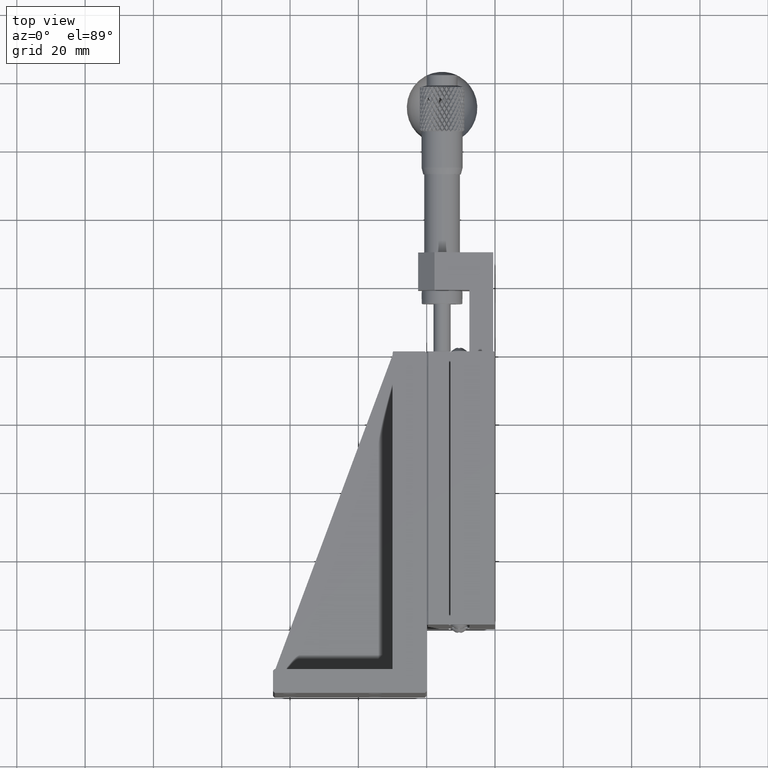
[diagram: clean part render]
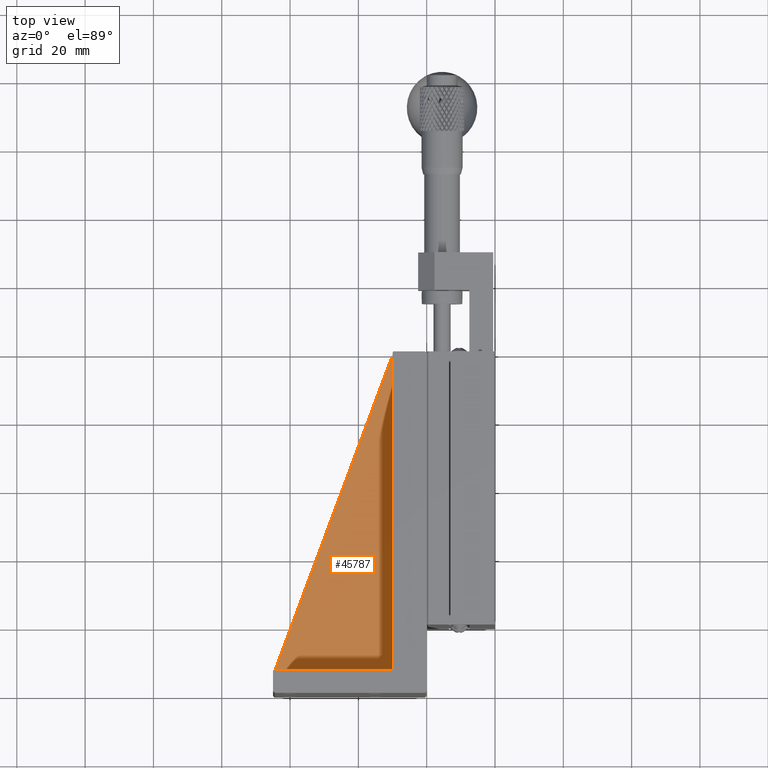
[diagram: same view with one face highlighted and labeled with its STEP entity id]
A machine part, top view. The second image highlights one B-rep face of the part: STEP entity #45787.
In plain terms, the highlighted planar face has unit normal (0, 0, 1).
Its self-contained STEP definition (entity closure, byte-faithful):
#655 = ORIENTED_EDGE ( 'NONE', *, *, #71077, .F. ) ;
#1028 = DIRECTION ( 'NONE',  ( 1.000000000000000000, 0.000000000000000000, -0.000000000000000000 ) ) ;
#1736 = VECTOR ( 'NONE', #90141, 1000.000000000000114 ) ;
#7862 = CARTESIAN_POINT ( 'NONE',  ( -9.980000000000002203, 99.55362318840577984, -32.99999999999998579 ) ) ;
#9892 = VERTEX_POINT ( 'NONE', #20787 ) ;
#14812 = EDGE_CURVE ( 'NONE', #9892, #20211, #53873, .T. ) ;
#15009 = CARTESIAN_POINT ( 'NONE',  ( -9.980000000000000426, 6.500000000000000888, -33.00000000000000000 ) ) ;
#15879 = CARTESIAN_POINT ( 'NONE',  ( -9.813513513513509423, 100.0000000000000000, -32.99999999999997158 ) ) ;
#20211 = VERTEX_POINT ( 'NONE', #102324 ) ;
#20243 = DIRECTION ( 'NONE',  ( 0.7071067811865480168, 0.7071067811865470176, -0.000000000000000000 ) ) ;
#20352 = VERTEX_POINT ( 'NONE', #15009 ) ;
#20787 = CARTESIAN_POINT ( 'NONE',  ( -45.00000000000000000, 6.500000000000001776, -33.00000000000000000 ) ) ;
#23747 = PLANE ( 'NONE',  #71756 ) ;
#24822 = DIRECTION ( 'NONE',  ( 0.000000000000000000, 0.000000000000000000, 1.000000000000000000 ) ) ;
#37748 = VECTOR ( 'NONE', #66052, 1000.000000000000000 ) ;
#38102 = EDGE_CURVE ( 'NONE', #20211, #68375, #105884, .T. ) ;
#40023 = CARTESIAN_POINT ( 'NONE',  ( -9.980000000000000426, 6.500000000000000888, -33.00000000000000000 ) ) ;
#40475 = LINE ( 'NONE', #107203, #37748 ) ;
#45787 = ADVANCED_FACE ( 'NONE', ( #50275 ), #23747, .T. ) ;
#50275 = FACE_OUTER_BOUND ( 'NONE', #104437, .T. ) ;
#50431 = ORIENTED_EDGE ( 'NONE', *, *, #90488, .T. ) ;
#53873 = LINE ( 'NONE', #95101, #97700 ) ;
#62513 = VECTOR ( 'NONE', #100372, 1000.000000000000000 ) ;
#66052 = DIRECTION ( 'NONE',  ( -1.000000000000000000, -0.000000000000000000, 0.000000000000000000 ) ) ;
#67858 = LINE ( 'NONE', #76487, #62513 ) ;
#68375 = VERTEX_POINT ( 'NONE', #7862 ) ;
#69566 = ORIENTED_EDGE ( 'NONE', *, *, #14812, .F. ) ;
#71077 = EDGE_CURVE ( 'NONE', #20352, #9892, #40475, .T. ) ;
#71756 = AXIS2_PLACEMENT_3D ( 'NONE', #40023, #24822, #1028 ) ;
#76445 = ORIENTED_EDGE ( 'NONE', *, *, #38102, .F. ) ;
#76487 = CARTESIAN_POINT ( 'NONE',  ( -9.980000000000000426, 0.000000000000000000, -33.00000000000000000 ) ) ;
#90141 = DIRECTION ( 'NONE',  ( 0.3494578104706320687, 0.9369521005372002387, -0.000000000000000000 ) ) ;
#90488 = EDGE_CURVE ( 'NONE', #20352, #68375, #67858, .T. ) ;
#95101 = CARTESIAN_POINT ( 'NONE',  ( -44.50000000000000000, 7.000000000000000000, -33.00000000000000000 ) ) ;
#97700 = VECTOR ( 'NONE', #20243, 1000.000000000000000 ) ;
#100372 = DIRECTION ( 'NONE',  ( -0.000000000000000000, 1.000000000000000000, 0.000000000000000000 ) ) ;
#102324 = CARTESIAN_POINT ( 'NONE',  ( -44.50000000000001421, 7.000000000000004441, -32.99999999999999289 ) ) ;
#104437 = EDGE_LOOP ( 'NONE', ( #50431, #76445, #69566, #655 ) ) ;
#105884 = LINE ( 'NONE', #15879, #1736 ) ;
#107203 = CARTESIAN_POINT ( 'NONE',  ( -9.980000000000000426, 6.500000000000000888, -33.00000000000000000 ) ) ;